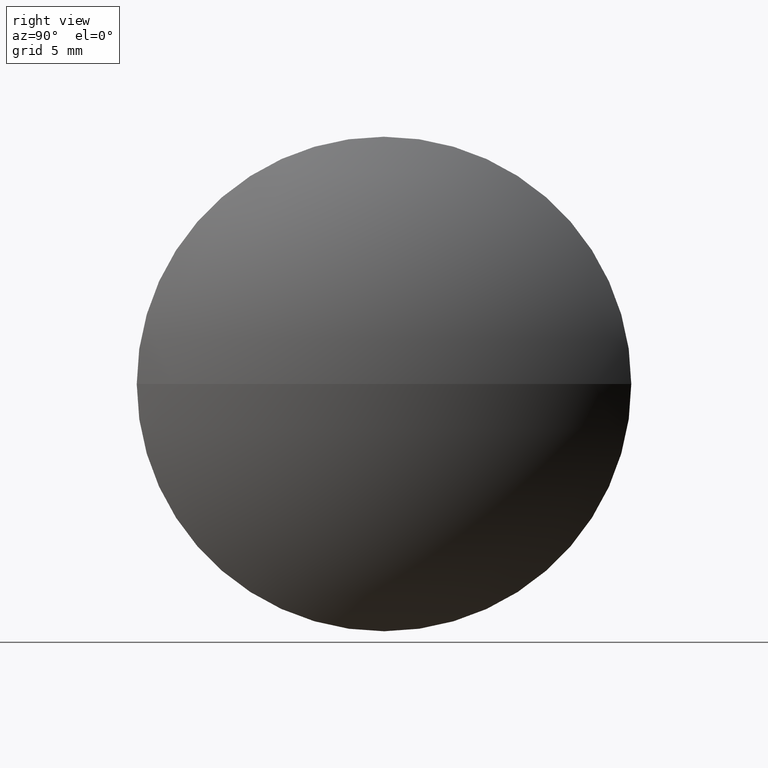
[diagram: clean part render]
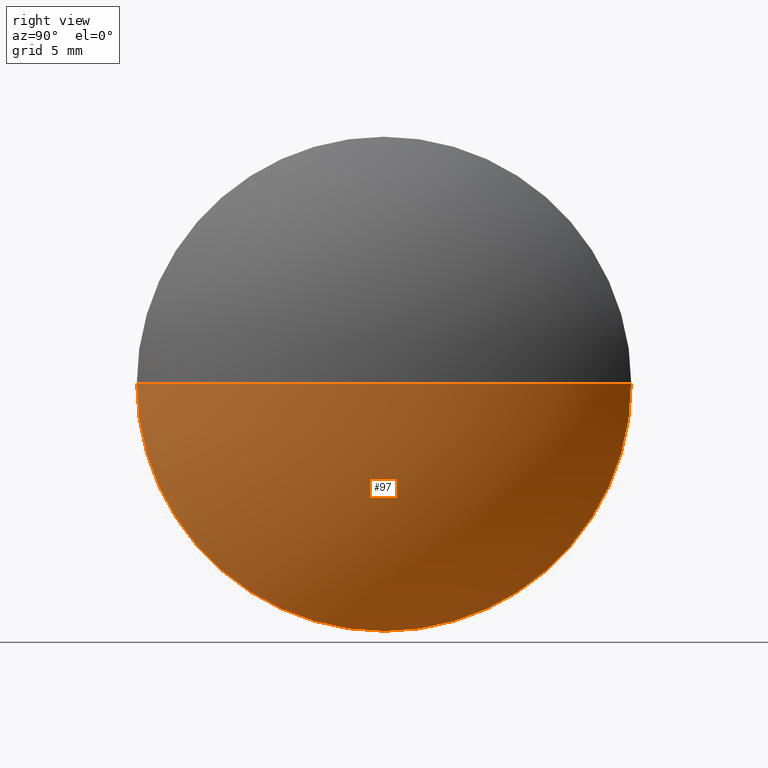
[diagram: same view with one face highlighted and labeled with its STEP entity id]
A machine part, right view. The second image highlights one B-rep face of the part: STEP entity #97.
In plain terms, the highlighted spherical surface has radius 20.1701 mm.
Its self-contained STEP definition (entity closure, byte-faithful):
#3 = DIRECTION ( 'NONE',  ( -0.0000000000000000000, 0.0000000000000000000, 1.000000000000000000 ) ) ;
#11 = DIRECTION ( 'NONE',  ( 0.0000000000000000000, 0.0000000000000000000, 1.000000000000000000 ) ) ;
#21 = ORIENTED_EDGE ( 'NONE', *, *, #51, .F. ) ;
#24 = EDGE_CURVE ( 'NONE', #314, #225, #60, .T. ) ;
#25 = DIRECTION ( 'NONE',  ( 1.000000000000000000, 0.0000000000000000000, 0.0000000000000000000 ) ) ;
#32 = CARTESIAN_POINT ( 'NONE',  ( 91.95816463180538800, 48.61611302318477400, 0.0000000000000000000 ) ) ;
#44 = AXIS2_PLACEMENT_3D ( 'NONE', #183, #3, #25 ) ;
#51 = EDGE_CURVE ( 'NONE', #208, #232, #309, .T. ) ;
#53 = CARTESIAN_POINT ( 'NONE',  ( 71.78809619211168100, 48.61611302318477400, 0.0000000000000000000 ) ) ;
#60 = CIRCLE ( 'NONE', #255, 20.17006843969371100 ) ;
#67 = AXIS2_PLACEMENT_3D ( 'NONE', #321, #270, #142 ) ;
#74 = EDGE_CURVE ( 'NONE', #314, #208, #316, .T. ) ;
#97 = ADVANCED_FACE ( 'NONE', ( #127 ), #265, .T. ) ;
#105 = AXIS2_PLACEMENT_3D ( 'NONE', #53, #204, #138 ) ;
#112 = EDGE_LOOP ( 'NONE', ( #294, #149, #175, #21 ) ) ;
#119 = CARTESIAN_POINT ( 'NONE',  ( 87.45786520323396500, 61.31611302318477600, 0.0000000000000000000 ) ) ;
#127 = FACE_OUTER_BOUND ( 'NONE', #112, .T. ) ;
#138 = DIRECTION ( 'NONE',  ( 0.0000000000000000000, 1.000000000000000000, 0.0000000000000000000 ) ) ;
#139 = CARTESIAN_POINT ( 'NONE',  ( 87.45786520323396500, 35.91611302318477800, -1.555301434917138000E-015 ) ) ;
#142 = DIRECTION ( 'NONE',  ( 0.0000000000000000000, 0.0000000000000000000, 1.000000000000000000 ) ) ;
#145 = CARTESIAN_POINT ( 'NONE',  ( 87.45786520323396500, 48.61611302318478100, 0.0000000000000000000 ) ) ;
#149 = ORIENTED_EDGE ( 'NONE', *, *, #24, .T. ) ;
#175 = ORIENTED_EDGE ( 'NONE', *, *, #190, .F. ) ;
#183 = CARTESIAN_POINT ( 'NONE',  ( 71.78809619211168100, 48.61611302318477400, 0.0000000000000000000 ) ) ;
#190 = EDGE_CURVE ( 'NONE', #232, #225, #191, .T. ) ;
#191 = CIRCLE ( 'NONE', #288, 12.69999999999999600 ) ;
#204 = DIRECTION ( 'NONE',  ( -0.0000000000000000000, 0.0000000000000000000, -1.000000000000000000 ) ) ;
#208 = VERTEX_POINT ( 'NONE', #119 ) ;
#225 = VERTEX_POINT ( 'NONE', #139 ) ;
#232 = VERTEX_POINT ( 'NONE', #295 ) ;
#236 = DIRECTION ( 'NONE',  ( 0.0000000000000000000, 1.000000000000000000, 1.224646799147353000E-016 ) ) ;
#255 = AXIS2_PLACEMENT_3D ( 'NONE', #318, #344, #236 ) ;
#265 = SPHERICAL_SURFACE ( 'NONE', #105, 20.17006843969370800 ) ;
#270 = DIRECTION ( 'NONE',  ( -1.000000000000000000, -0.0000000000000000000, -0.0000000000000000000 ) ) ;
#276 = DIRECTION ( 'NONE',  ( -1.000000000000000000, -0.0000000000000000000, -0.0000000000000000000 ) ) ;
#288 = AXIS2_PLACEMENT_3D ( 'NONE', #145, #276, #11 ) ;
#294 = ORIENTED_EDGE ( 'NONE', *, *, #74, .F. ) ;
#295 = CARTESIAN_POINT ( 'NONE',  ( 87.45786520323396500, 48.61611302318478100, -12.69999999999999600 ) ) ;
#309 = CIRCLE ( 'NONE', #67, 12.69999999999999600 ) ;
#314 = VERTEX_POINT ( 'NONE', #32 ) ;
#316 = CIRCLE ( 'NONE', #44, 20.17006843969371100 ) ;
#318 = CARTESIAN_POINT ( 'NONE',  ( 71.78809619211168100, 48.61611302318477400, 0.0000000000000000000 ) ) ;
#321 = CARTESIAN_POINT ( 'NONE',  ( 87.45786520323396500, 48.61611302318478100, 0.0000000000000000000 ) ) ;
#344 = DIRECTION ( 'NONE',  ( 0.0000000000000000000, 1.224646799147353200E-016, -1.000000000000000000 ) ) ;